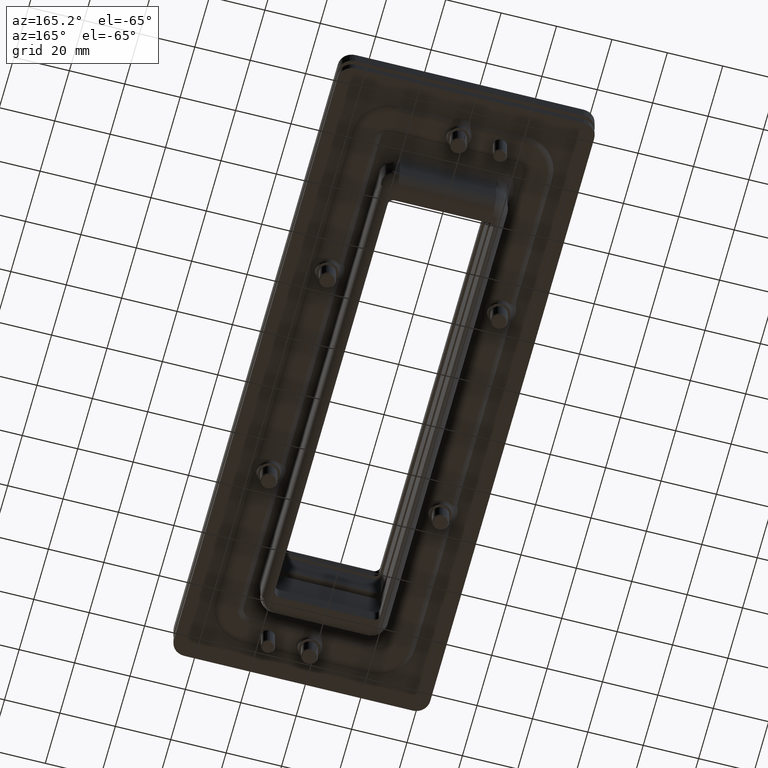
[diagram: clean part render]
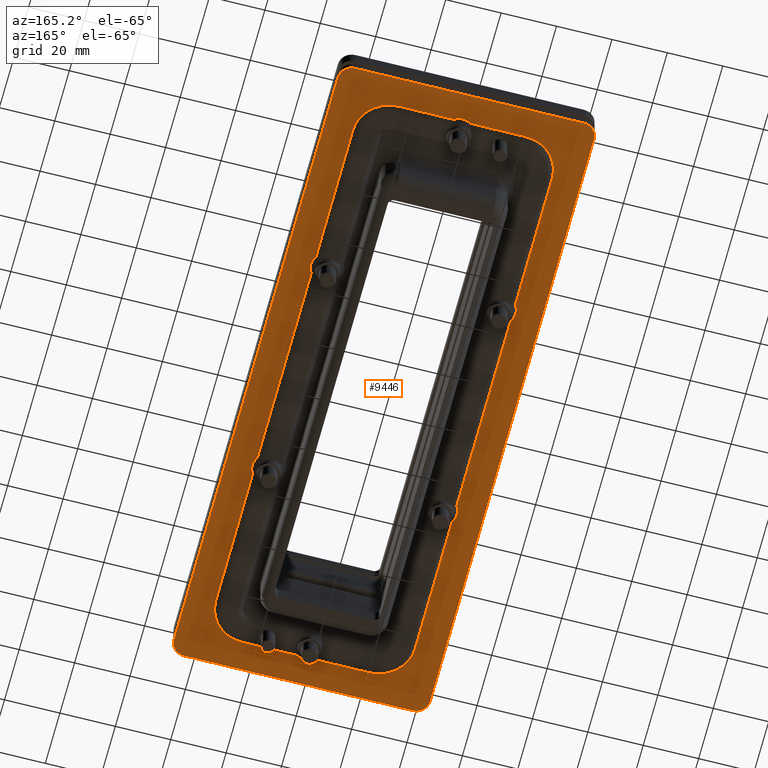
[diagram: same view with one face highlighted and labeled with its STEP entity id]
A machine part, auxiliary view. The second image highlights one B-rep face of the part: STEP entity #9446.
In plain terms, the highlighted planar face has unit normal (-0, 0, -1).
Its self-contained STEP definition (entity closure, byte-faithful):
#212=FACE_BOUND('',#1446,.T.);
#371=PLANE('',#10310);
#851=FACE_OUTER_BOUND('',#1445,.T.);
#1445=EDGE_LOOP('',(#8205,#8206,#8207,#8208,#8209,#8210,#8211,#8212));
#1446=EDGE_LOOP('',(#8213,#8214,#8215,#8216,#8217,#8218,#8219,#8220,#8221,
#8222,#8223,#8224,#8225,#8226,#8227,#8228,#8229,#8230,#8231,#8232));
#2447=LINE('',#17437,#3103);
#2448=LINE('',#17441,#3104);
#2449=LINE('',#17445,#3105);
#2450=LINE('',#17449,#3106);
#2451=LINE('',#17452,#3107);
#2452=LINE('',#17456,#3108);
#2453=LINE('',#17459,#3109);
#2454=LINE('',#17461,#3110);
#2455=LINE('',#17464,#3111);
#2456=LINE('',#17466,#3112);
#2457=LINE('',#17470,#3113);
#2458=LINE('',#17474,#3114);
#2459=LINE('',#17478,#3115);
#2460=LINE('',#17481,#3116);
#3103=VECTOR('',#12543,8.25);
#3104=VECTOR('',#12546,22.4);
#3105=VECTOR('',#12549,8.25);
#3106=VECTOR('',#12552,22.4);
#3107=VECTOR('',#12555,1.);
#3108=VECTOR('',#12558,1.);
#3109=VECTOR('',#12561,1.);
#3110=VECTOR('',#12562,1.);
#3111=VECTOR('',#12565,1.);
#3112=VECTOR('',#12566,1.);
#3113=VECTOR('',#12569,1.);
#3114=VECTOR('',#12572,1.);
#3115=VECTOR('',#12575,1.);
#3116=VECTOR('',#12578,1.);
#3507=CIRCLE('',#10266,1.30608169114087);
#3515=CIRCLE('',#10276,1.30608169114087);
#3519=CIRCLE('',#10281,1.30608169114087);
#3543=CIRCLE('',#10311,0.5);
#3544=CIRCLE('',#10312,0.5);
#3545=CIRCLE('',#10313,0.5);
#3546=CIRCLE('',#10314,0.5);
#3547=CIRCLE('',#10315,0.600000000000001);
#3548=CIRCLE('',#10316,0.600000000000001);
#3549=CIRCLE('',#10317,0.600000000000001);
#3550=CIRCLE('',#10318,0.600000000000001);
#3551=CIRCLE('',#10319,0.600000000000001);
#3552=CIRCLE('',#10320,1.30608169114087);
#3553=CIRCLE('',#10321,0.600000000000001);
#4369=VERTEX_POINT('',#17326);
#4370=VERTEX_POINT('',#17327);
#4377=VERTEX_POINT('',#17344);
#4378=VERTEX_POINT('',#17345);
#4381=VERTEX_POINT('',#17353);
#4382=VERTEX_POINT('',#17354);
#4418=VERTEX_POINT('',#17435);
#4419=VERTEX_POINT('',#17436);
#4420=VERTEX_POINT('',#17438);
#4421=VERTEX_POINT('',#17440);
#4422=VERTEX_POINT('',#17442);
#4423=VERTEX_POINT('',#17444);
#4424=VERTEX_POINT('',#17446);
#4425=VERTEX_POINT('',#17448);
#4426=VERTEX_POINT('',#17451);
#4427=VERTEX_POINT('',#17453);
#4428=VERTEX_POINT('',#17455);
#4429=VERTEX_POINT('',#17457);
#4430=VERTEX_POINT('',#17460);
#4431=VERTEX_POINT('',#17462);
#4432=VERTEX_POINT('',#17465);
#4433=VERTEX_POINT('',#17467);
#4434=VERTEX_POINT('',#17469);
#4435=VERTEX_POINT('',#17471);
#4436=VERTEX_POINT('',#17473);
#4437=VERTEX_POINT('',#17475);
#4438=VERTEX_POINT('',#17477);
#4439=VERTEX_POINT('',#17479);
#5664=EDGE_CURVE('',#4369,#4370,#3507,.T.);
#5672=EDGE_CURVE('',#4377,#4378,#3515,.T.);
#5676=EDGE_CURVE('',#4381,#4382,#3519,.T.);
#5715=EDGE_CURVE('',#4418,#4419,#2447,.T.);
#5716=EDGE_CURVE('',#4418,#4420,#3543,.T.);
#5717=EDGE_CURVE('',#4420,#4421,#2448,.T.);
#5718=EDGE_CURVE('',#4422,#4421,#3544,.T.);
#5719=EDGE_CURVE('',#4423,#4422,#2449,.F.);
#5720=EDGE_CURVE('',#4423,#4424,#3545,.T.);
#5721=EDGE_CURVE('',#4425,#4424,#2450,.T.);
#5722=EDGE_CURVE('',#4419,#4425,#3546,.T.);
#5723=EDGE_CURVE('',#4426,#4369,#2451,.T.);
#5724=EDGE_CURVE('',#4427,#4426,#3547,.T.);
#5725=EDGE_CURVE('',#4428,#4427,#2452,.T.);
#5726=EDGE_CURVE('',#4429,#4428,#3548,.T.);
#5727=EDGE_CURVE('',#4378,#4429,#2453,.T.);
#5728=EDGE_CURVE('',#4430,#4377,#2454,.T.);
#5729=EDGE_CURVE('',#4431,#4430,#3549,.T.);
#5730=EDGE_CURVE('',#4382,#4431,#2455,.T.);
#5731=EDGE_CURVE('',#4432,#4381,#2456,.T.);
#5732=EDGE_CURVE('',#4433,#4432,#3550,.T.);
#5733=EDGE_CURVE('',#4434,#4433,#2457,.T.);
#5734=EDGE_CURVE('',#4435,#4434,#3551,.T.);
#5735=EDGE_CURVE('',#4436,#4435,#2458,.T.);
#5736=EDGE_CURVE('',#4437,#4436,#3552,.T.);
#5737=EDGE_CURVE('',#4438,#4437,#2459,.T.);
#5738=EDGE_CURVE('',#4439,#4438,#3553,.T.);
#5739=EDGE_CURVE('',#4370,#4439,#2460,.T.);
#8205=ORIENTED_EDGE('',*,*,#5715,.F.);
#8206=ORIENTED_EDGE('',*,*,#5716,.T.);
#8207=ORIENTED_EDGE('',*,*,#5717,.T.);
#8208=ORIENTED_EDGE('',*,*,#5718,.F.);
#8209=ORIENTED_EDGE('',*,*,#5719,.F.);
#8210=ORIENTED_EDGE('',*,*,#5720,.T.);
#8211=ORIENTED_EDGE('',*,*,#5721,.F.);
#8212=ORIENTED_EDGE('',*,*,#5722,.F.);
#8213=ORIENTED_EDGE('',*,*,#5664,.F.);
#8214=ORIENTED_EDGE('',*,*,#5723,.F.);
#8215=ORIENTED_EDGE('',*,*,#5724,.F.);
#8216=ORIENTED_EDGE('',*,*,#5725,.F.);
#8217=ORIENTED_EDGE('',*,*,#5726,.F.);
#8218=ORIENTED_EDGE('',*,*,#5727,.F.);
#8219=ORIENTED_EDGE('',*,*,#5672,.F.);
#8220=ORIENTED_EDGE('',*,*,#5728,.F.);
#8221=ORIENTED_EDGE('',*,*,#5729,.F.);
#8222=ORIENTED_EDGE('',*,*,#5730,.F.);
#8223=ORIENTED_EDGE('',*,*,#5676,.F.);
#8224=ORIENTED_EDGE('',*,*,#5731,.F.);
#8225=ORIENTED_EDGE('',*,*,#5732,.F.);
#8226=ORIENTED_EDGE('',*,*,#5733,.F.);
#8227=ORIENTED_EDGE('',*,*,#5734,.F.);
#8228=ORIENTED_EDGE('',*,*,#5735,.F.);
#8229=ORIENTED_EDGE('',*,*,#5736,.F.);
#8230=ORIENTED_EDGE('',*,*,#5737,.F.);
#8231=ORIENTED_EDGE('',*,*,#5738,.F.);
#8232=ORIENTED_EDGE('',*,*,#5739,.F.);
#9446=ADVANCED_FACE('',(#851,#212),#371,.T.);
#10266=AXIS2_PLACEMENT_3D('',#17328,#12438,#12439);
#10276=AXIS2_PLACEMENT_3D('',#17346,#12458,#12459);
#10281=AXIS2_PLACEMENT_3D('',#17355,#12468,#12469);
#10310=AXIS2_PLACEMENT_3D('',#17434,#12541,#12542);
#10311=AXIS2_PLACEMENT_3D('',#17439,#12544,#12545);
#10312=AXIS2_PLACEMENT_3D('',#17443,#12547,#12548);
#10313=AXIS2_PLACEMENT_3D('',#17447,#12550,#12551);
#10314=AXIS2_PLACEMENT_3D('',#17450,#12553,#12554);
#10315=AXIS2_PLACEMENT_3D('',#17454,#12556,#12557);
#10316=AXIS2_PLACEMENT_3D('',#17458,#12559,#12560);
#10317=AXIS2_PLACEMENT_3D('',#17463,#12563,#12564);
#10318=AXIS2_PLACEMENT_3D('',#17468,#12567,#12568);
#10319=AXIS2_PLACEMENT_3D('',#17472,#12570,#12571);
#10320=AXIS2_PLACEMENT_3D('',#17476,#12573,#12574);
#10321=AXIS2_PLACEMENT_3D('',#17480,#12576,#12577);
#12438=DIRECTION('center_axis',(-6.41847686111421E-17,4.49084690960502E-16,
-1.));
#12439=DIRECTION('ref_axis',(-8.7428805989697E-16,-1.,-4.49084690960502E-16));
#12458=DIRECTION('center_axis',(-6.41847686111421E-17,4.49084690960502E-16,
-1.));
#12459=DIRECTION('ref_axis',(-8.7428805989697E-16,-1.,-4.49084690960502E-16));
#12468=DIRECTION('center_axis',(-6.41847686111421E-17,4.49084690960502E-16,
-1.));
#12469=DIRECTION('ref_axis',(-8.7428805989697E-16,-1.,-4.49084690960502E-16));
#12541=DIRECTION('center_axis',(-6.41847686111421E-17,4.49084690960502E-16,
-1.));
#12542=DIRECTION('ref_axis',(8.7428805989697E-16,1.,4.49084690960502E-16));
#12543=DIRECTION('',(-1.,8.7428805989697E-16,6.41847686111425E-17));
#12544=DIRECTION('center_axis',(-6.41847686111421E-17,4.49084690960502E-16,
-1.));
#12545=DIRECTION('ref_axis',(1.,-8.7428805989697E-16,-6.41847686111425E-17));
#12546=DIRECTION('',(-8.7428805989697E-16,-1.,-4.49084690960502E-16));
#12547=DIRECTION('center_axis',(6.41847686111421E-17,-4.49084690960502E-16,
1.));
#12548=DIRECTION('ref_axis',(-1.,8.7428805989697E-16,6.41847686111425E-17));
#12549=DIRECTION('',(-1.,8.7428805989697E-16,6.41847686111425E-17));
#12550=DIRECTION('center_axis',(-6.41847686111421E-17,4.49084690960502E-16,
-1.));
#12551=DIRECTION('ref_axis',(1.,-8.7428805989697E-16,-6.41847686111425E-17));
#12552=DIRECTION('',(-8.7428805989697E-16,-1.,-4.49084690960502E-16));
#12553=DIRECTION('center_axis',(6.41847686111421E-17,-4.49084690960502E-16,
1.));
#12554=DIRECTION('ref_axis',(-1.,8.7428805989697E-16,6.41847686111425E-17));
#12555=DIRECTION('',(-8.7428805989697E-16,-1.,-4.49084690960502E-16));
#12556=DIRECTION('center_axis',(-6.41847686111421E-17,4.49084690960502E-16,
-1.));
#12557=DIRECTION('ref_axis',(1.,-8.7428805989697E-16,-6.41847686111425E-17));
#12558=DIRECTION('',(-8.7428805989697E-16,-1.,-4.49084690960502E-16));
#12559=DIRECTION('center_axis',(-6.41847686111421E-17,4.49084690960502E-16,
-1.));
#12560=DIRECTION('ref_axis',(1.,-8.7428805989697E-16,-6.41847686111425E-17));
#12561=DIRECTION('',(-8.7428805989697E-16,-1.,-4.49084690960502E-16));
#12562=DIRECTION('',(1.,-8.7428805989697E-16,-6.41847686111425E-17));
#12563=DIRECTION('center_axis',(-6.41847686111421E-17,4.49084690960502E-16,
-1.));
#12564=DIRECTION('ref_axis',(-1.,8.7428805989697E-16,6.41847686111425E-17));
#12565=DIRECTION('',(1.,-8.7428805989697E-16,-6.41847686111425E-17));
#12566=DIRECTION('',(8.7428805989697E-16,1.,4.49084690960502E-16));
#12567=DIRECTION('center_axis',(-6.41847686111421E-17,4.49084690960502E-16,
-1.));
#12568=DIRECTION('ref_axis',(-1.,8.7428805989697E-16,6.41847686111425E-17));
#12569=DIRECTION('',(8.7428805989697E-16,1.,4.49084690960502E-16));
#12570=DIRECTION('center_axis',(-6.41847686111421E-17,4.49084690960502E-16,
-1.));
#12571=DIRECTION('ref_axis',(-1.,8.7428805989697E-16,6.41847686111425E-17));
#12572=DIRECTION('',(8.7428805989697E-16,1.,4.49084690960502E-16));
#12573=DIRECTION('center_axis',(-6.41847686111421E-17,4.49084690960502E-16,
-1.));
#12574=DIRECTION('ref_axis',(-8.7428805989697E-16,-1.,-4.49084690960502E-16));
#12575=DIRECTION('',(-1.,8.7428805989697E-16,6.41847686111425E-17));
#12576=DIRECTION('center_axis',(-6.41847686111421E-17,4.49084690960502E-16,
-1.));
#12577=DIRECTION('ref_axis',(-1.,8.7428805989697E-16,6.41847686111425E-17));
#12578=DIRECTION('',(-1.,8.7428805989697E-16,6.41847686111425E-17));
#17326=CARTESIAN_POINT('',(3.60108169114086,-9.36999999999999,-1.90000000000004));
#17327=CARTESIAN_POINT('',(2.29499999999998,-10.6760816911409,-1.90000000000004));
#17328=CARTESIAN_POINT('Origin',(2.29499999999999,-9.36999999999999,-1.90000000000004));
#17344=CARTESIAN_POINT('',(2.295,10.6760816911409,-1.90000000000003));
#17345=CARTESIAN_POINT('',(3.60108169114088,9.37000000000001,-1.90000000000003));
#17346=CARTESIAN_POINT('Origin',(2.295,9.37000000000001,-1.90000000000003));
#17353=CARTESIAN_POINT('',(-3.60108169114087,9.37000000000002,-1.90000000000003));
#17354=CARTESIAN_POINT('',(-2.295,10.6760816911409,-1.90000000000003));
#17355=CARTESIAN_POINT('Origin',(-2.295,9.37000000000002,-1.90000000000003));
#17434=CARTESIAN_POINT('Origin',(-1.74,9.26500000000002,-1.90000000000003));
#17435=CARTESIAN_POINT('',(4.125,11.7,-1.90000000000003));
#17436=CARTESIAN_POINT('',(-4.125,11.7,-1.90000000000003));
#17437=CARTESIAN_POINT('',(4.125,11.7,-1.90000000000003));
#17438=CARTESIAN_POINT('',(4.625,11.2,-1.90000000000003));
#17439=CARTESIAN_POINT('Origin',(4.125,11.2,-1.90000000000003));
#17440=CARTESIAN_POINT('',(4.62499999999998,-11.2,-1.90000000000004));
#17441=CARTESIAN_POINT('',(4.625,11.2,-1.90000000000003));
#17442=CARTESIAN_POINT('',(4.12499999999998,-11.7,-1.90000000000004));
#17443=CARTESIAN_POINT('Origin',(4.12499999999998,-11.2,-1.90000000000004));
#17444=CARTESIAN_POINT('',(-4.12500000000002,-11.7,-1.90000000000004));
#17445=CARTESIAN_POINT('',(4.12499999999998,-11.7,-1.90000000000004));
#17446=CARTESIAN_POINT('',(-4.62500000000002,-11.2,-1.90000000000004));
#17447=CARTESIAN_POINT('Origin',(-4.12500000000002,-11.2,-1.90000000000004));
#17448=CARTESIAN_POINT('',(-4.625,11.2,-1.90000000000003));
#17449=CARTESIAN_POINT('',(-4.625,11.2,-1.90000000000003));
#17450=CARTESIAN_POINT('Origin',(-4.125,11.2,-1.90000000000003));
#17451=CARTESIAN_POINT('',(3.60108169114086,-4.3300259668623,-1.90000000000003));
#17452=CARTESIAN_POINT('',(3.60108169114088,8.17950000000001,-1.90000000000003));
#17453=CARTESIAN_POINT('',(3.60108169114087,-3.66997403313768,-1.90000000000003));
#17454=CARTESIAN_POINT('Origin',(3.09999999999999,-3.99999999999999,-1.90000000000003));
#17455=CARTESIAN_POINT('',(3.60108169114087,3.6699740331377,-1.90000000000003));
#17456=CARTESIAN_POINT('',(3.60108169114088,8.17950000000001,-1.90000000000003));
#17457=CARTESIAN_POINT('',(3.60108169114087,4.33002596686232,-1.90000000000003));
#17458=CARTESIAN_POINT('Origin',(3.1,4.00000000000001,-1.90000000000003));
#17459=CARTESIAN_POINT('',(3.60108169114088,8.17950000000001,-1.90000000000003));
#17460=CARTESIAN_POINT('',(0.32230625481366,10.6760816911409,-1.90000000000003));
#17461=CARTESIAN_POINT('',(-1.74,10.6760816911409,-1.90000000000003));
#17462=CARTESIAN_POINT('',(-0.322306254813649,10.6760816911409,-1.90000000000003));
#17463=CARTESIAN_POINT('Origin',(4.89018807051957E-15,10.17,-1.90000000000003));
#17464=CARTESIAN_POINT('',(-1.74,10.6760816911409,-1.90000000000003));
#17465=CARTESIAN_POINT('',(-3.60108169114091,4.33002596686227,-1.90000000000003));
#17466=CARTESIAN_POINT('',(-3.60108169114087,8.17950000000002,-1.90000000000003));
#17467=CARTESIAN_POINT('',(-3.60108169114091,3.66997403313776,-1.90000000000003));
#17468=CARTESIAN_POINT('Origin',(-3.1,4.00000000000002,-1.90000000000003));
#17469=CARTESIAN_POINT('',(-3.60108169114092,-3.66997403313773,-1.90000000000003));
#17470=CARTESIAN_POINT('',(-3.60108169114087,8.17950000000002,-1.90000000000003));
#17471=CARTESIAN_POINT('',(-3.60108169114092,-4.33002596686224,-1.90000000000003));
#17472=CARTESIAN_POINT('Origin',(-3.10000000000001,-3.99999999999998,-1.90000000000003));
#17473=CARTESIAN_POINT('',(-3.60108169114089,-9.36999999999998,-1.90000000000004));
#17474=CARTESIAN_POINT('',(-3.60108169114087,8.17950000000002,-1.90000000000003));
#17475=CARTESIAN_POINT('',(-2.29500000000002,-10.6760816911408,-1.90000000000004));
#17476=CARTESIAN_POINT('Origin',(-2.29500000000001,-9.36999999999999,-1.90000000000004));
#17477=CARTESIAN_POINT('',(-0.322306254813673,-10.6760816911409,-1.90000000000004));
#17478=CARTESIAN_POINT('',(-1.74000000000002,-10.6760816911408,-1.90000000000004));
#17479=CARTESIAN_POINT('',(0.322306254813636,-10.6760816911409,-1.90000000000004));
#17480=CARTESIAN_POINT('Origin',(-1.78746942467162E-14,-10.17,-1.90000000000004));
#17481=CARTESIAN_POINT('',(-1.74000000000002,-10.6760816911408,-1.90000000000004));